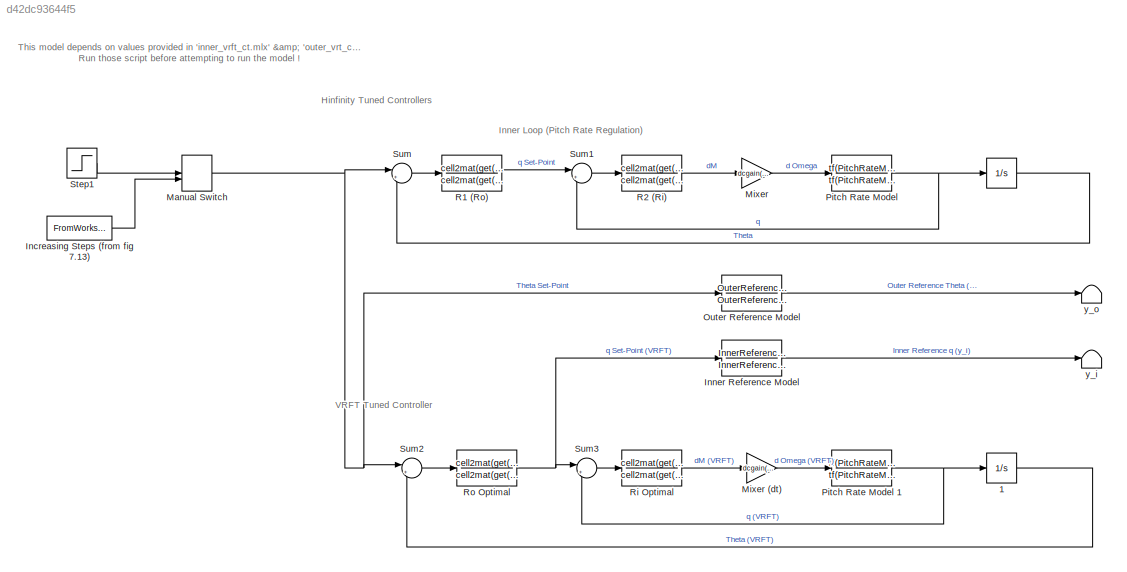
MODEL slx_d42dc93644f5
KIND model
CONFIG AbsTol = auto
CONFIG EnableMultiTasking = on
CONFIG FixedStep = auto
CONFIG MaxStep = auto
CONFIG MinStep = auto
CONFIG RelTol = 1e-3
CONFIG SampleTimeConstraint = Unconstrained
CONFIG Solver = VariableStepAuto
CONFIG SolverName = VariableStepAuto
CONFIG StartTime = 0.0
CONFIG StopTime = 70
BLOCK [Integrator]  
  ContinuousStateAttributes = 'PitchAngle'
  Ports = [1, 1]
BLOCK [Integrator]  1
  ContinuousStateAttributes = 'PitchAngle'
  Ports = [1, 1]
BLOCK [FromWorkspace] Increasing Steps (from fig 7.13)
  OutputAfterFinalValue = Holding final value
  SampleTime = Ts
  VariableName = [PitchTestSequence.Time, PitchTestSequence.Theta]
  ZeroCross = on
BLOCK [TransferFcn] Inner Reference Model
  Denominator = InnerReferenceModel.Denominator{:}
  Numerator = InnerReferenceModel.Numerator{:}
BLOCK [ManualSwitch] Manual Switch
  CurrentSetting = 0
BLOCK [Gain] Mixer 
  Gain = dcgain(Mixer)
  OutDataTypeStr = Inherit: Inherit via internal rule
  ParamDataTypeStr = Inherit: Inherit via internal rule
  SaturateOnIntegerOverflow = off
BLOCK [Gain] Mixer (dt)
  Gain = dcgain(Mixer)
  OutDataTypeStr = Inherit: Inherit via internal rule
  ParamDataTypeStr = Inherit: Inherit via internal rule
  SaturateOnIntegerOverflow = off
BLOCK [TransferFcn] Outer Reference Model
  Denominator = OuterReferenceModel.Denominator{:}
  Numerator = OuterReferenceModel.Numerator{:}
BLOCK [TransferFcn] Pitch Rate Model 
  ContinuousStateAttributes = 'PitchRate'
  Denominator = tf(PitchRateModel).Denominator{:}
  Numerator = tf(PitchRateModel).Numerator{:}
BLOCK [TransferFcn] Pitch Rate Model 1
  ContinuousStateAttributes = 'PitchRate'
  Denominator = tf(PitchRateModel).Denominator{:}
  Numerator = tf(PitchRateModel).Numerator{:}
BLOCK [TransferFcn] R1 (Ro) 
  Denominator = cell2mat(get(tf(Ro), 'Denominator'))
  Numerator = cell2mat(get(tf(Ro), 'Numerator'))
BLOCK [TransferFcn] R2 (Ri) 
  Denominator = cell2mat(get(tf(Ri), 'Denominator'))
  Numerator = cell2mat(get(tf(Ri), 'Numerator'))
BLOCK [TransferFcn] Ri Optimal 
  Denominator = cell2mat(get(tf(OptimalInnerController), 'Numerator'))
  Numerator = cell2mat(get(tf(OptimalInnerController), 'Numerator'))
BLOCK [TransferFcn] Ro Optimal
  Denominator = cell2mat(get(tf(OptimalOuterController), 'Denominator'))
  Numerator = cell2mat(get(tf(OptimalOuterController), 'Numerator'))
BLOCK [Step] Step1
  After = step_size
  SampleTime = 0
BLOCK [Sum] Sum
  IconShape = round
  InputSameDT = off
  Inputs = |+-
  OutDataTypeStr = Inherit: Inherit via internal rule
  Ports = [2, 1]
  SaturateOnIntegerOverflow = off
BLOCK [Sum] Sum1
  IconShape = round
  InputSameDT = off
  Inputs = |+-
  OutDataTypeStr = Inherit: Inherit via internal rule
  Ports = [2, 1]
  SaturateOnIntegerOverflow = off
BLOCK [Sum] Sum2
  IconShape = round
  InputSameDT = off
  Inputs = |+-
  OutDataTypeStr = Inherit: Inherit via internal rule
  Ports = [2, 1]
  SaturateOnIntegerOverflow = off
BLOCK [Sum] Sum3
  IconShape = round
  InputSameDT = off
  Inputs = |+-
  OutDataTypeStr = Inherit: Inherit via internal rule
  Ports = [2, 1]
  SaturateOnIntegerOverflow = off
BLOCK [Terminator] y_i
BLOCK [Terminator] y_o
ANNOTATION (root): This model depends on values provided in 'inner_vrft_ct.mlx' & 'outer_vrt_ct.mlx' scripts. Run those script before attempting to run the model !
ANNOTATION (root): Hinfinity Tuned Controllers
ANNOTATION (root): Inner Loop (Pitch Rate Regulation)
ANNOTATION (root): VRFT Tuned Controller
LINE  1:1 -> Sum2:2
LINE  :1 -> Sum:2
LINE Increasing Steps (from fig 7.13):1 -> Manual Switch:2
LINE Inner Reference Model:1 -> y_i:1
NET Manual Switch:1 -> Outer Reference Model:1, Sum2:1, Sum:1
LINE Mixer (dt):1 -> Pitch Rate Model 1:1
LINE Mixer :1 -> Pitch Rate Model :1
LINE Outer Reference Model:1 -> y_o:1
NET Pitch Rate Model 1:1 ->  1:1, Sum3:2
NET Pitch Rate Model :1 ->  :1, Sum1:2
LINE R1 (Ro) :1 -> Sum1:1
LINE R2 (Ri) :1 -> Mixer :1
LINE Ri Optimal :1 -> Mixer (dt):1
NET Ro Optimal:1 -> Inner Reference Model:1, Sum3:1
LINE Step1:1 -> Manual Switch:1
LINE Sum1:1 -> R2 (Ri) :1
LINE Sum2:1 -> Ro Optimal:1
LINE Sum3:1 -> Ri Optimal :1
LINE Sum:1 -> R1 (Ro) :1
note: NET lines group one-source signal fan-out (src -> all destinations, sorted); 1:1 wires keep LINE
